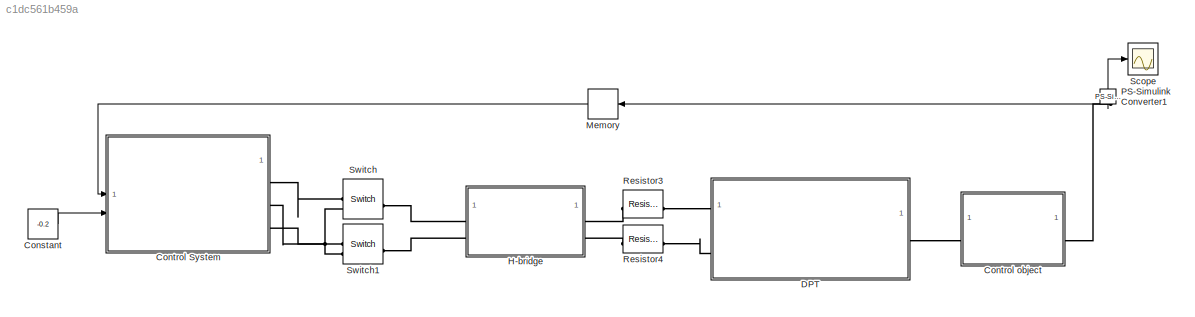
MODEL slx_c1dc561b459a
KIND model
CONFIG AbsTol = auto
CONFIG EnableMultiTasking = off
CONFIG FixedStep = auto
CONFIG MaxStep = auto
CONFIG MinStep = auto
CONFIG RelTol = 5e-3
CONFIG SampleTimeConstraint = Unconstrained
CONFIG SolverName = VariableStepAuto
CONFIG StartTime = 0.0
CONFIG StopTime = 1
BLOCK [Constant] Constant
  Value = -0.2
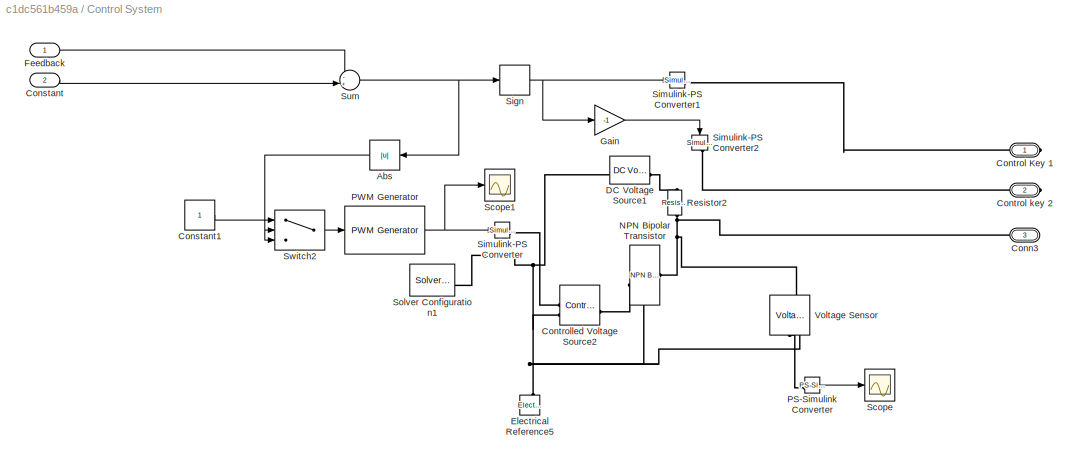
BLOCK [SubSystem] Control System
BLOCK [Abs] Control System/Abs
  NameLocation = top
  SaturateOnIntegerOverflow = off
BLOCK [PMIOPort] Control System/Conn3
  NameLocation = top
  Port = 3
  Side = Right
BLOCK [Inport] Control System/Constant
  Port = 2
BLOCK [Constant] Control System/Constant1
BLOCK [PMIOPort] Control System/Control Key 1
  Side = Right
BLOCK [PMIOPort] Control System/Control key 2
  Port = 2
  Side = Right
BLOCK [Reference] Control System/Controlled Voltage Source2  REF=fl_lib/Electrical/Electrical Sources/Controlled Voltage
Source
  SourceBlock = fl_lib/Electrical/Electrical Sources/Controlled Voltage\nSource
  SourceType = Controlled Voltage\nSource
BLOCK [Reference] Control System/DC Voltage Source1  REF=fl_lib/Electrical/Electrical Sources/DC Voltage Source
  SourceBlock = fl_lib/Electrical/Electrical Sources/DC Voltage Source
  SourceType = DC Voltage Source
BLOCK [Reference] Control System/Electrical Reference5  REF=fl_lib/Electrical/Electrical Elements/Electrical Reference
  NameLocation = right
  SourceBlock = fl_lib/Electrical/Electrical Elements/Electrical Reference
  SourceType = Electrical Reference
BLOCK [Inport] Control System/Feedback
  NameLocation = top
BLOCK [Gain] Control System/Gain
  Gain = -1
BLOCK [Reference] Control System/NPN Bipolar Transistor  REF=ee_lib/Semiconductors &
Converters/NPN Bipolar
Transistor
  SourceBlock = ee_lib/Semiconductors &\nConverters/NPN Bipolar\nTransistor
  SourceType = NPN Bipolar\nTransistor
BLOCK [Reference] Control System/PS-Simulink Converter  REF=nesl_utility/PS-Simulink
Converter
  SourceBlock = nesl_utility/PS-Simulink\nConverter
  SourceType = PS-Simulink\nConverter
BLOCK [Reference] Control System/PWM Generator  REF=eePwmGenerator/PWM Generator
  LibrarySourceBlock = ee_sl_lib/Pulse Width\nModulation/PWM Generator
  SourceBlock = eePwmGenerator/PWM Generator
  SourceType = PWM Generator
BLOCK [Reference] Control System/Resistor2  REF=fl_lib/Electrical/Electrical Elements/Resistor
  NameLocation = left
  SourceBlock = fl_lib/Electrical/Electrical Elements/Resistor
  SourceType = Resistor
BLOCK [Scope] Control System/Scope
  Floating = off
  NumInputPorts = 1
  ScopeSpecificationString = Simulink.scopes.TimeScopeBlockCfg('CurrentConfiguration', extmgr.ConfigurationSet(extmgr.Configuration('Core','General UI',true),extmgr.Configuration('Core','Source UI',true),extmgr.Configuration('Sources','WiredSimulink',true,'DataLoggingVariableName','ScopeData2'),extmgr.Configuration('Visuals','Time Domain',true,'SerializedDisplays',{struct('MinYLimReal','0.12274','MaxYLimReal','2.88243','YLabe...<+1454ch>
BLOCK [Scope] Control System/Scope1
  Floating = off
  NumInputPorts = 1
  ScopeSpecificationString = Simulink.scopes.TimeScopeBlockCfg('CurrentConfiguration', extmgr.ConfigurationSet(extmgr.Configuration('Core','General UI',true),extmgr.Configuration('Core','Source UI',true),extmgr.Configuration('Sources','WiredSimulink',true,'DataLoggingVariableName','ScopeData3'),extmgr.Configuration('Visuals','Time Domain',true,'SerializedDisplays',{struct('MinYLimReal','0.9','MaxYLimReal','1.1','YLabelReal','...<+1415ch>
BLOCK [Signum] Control System/Sign
BLOCK [Reference] Control System/Simulink-PS Converter  REF=nesl_utility/Simulink-PS
Converter
  SourceBlock = nesl_utility/Simulink-PS\nConverter
  SourceType = Simulink-PS\nConverter
BLOCK [Reference] Control System/Simulink-PS Converter1  REF=nesl_utility/Simulink-PS
Converter
  SourceBlock = nesl_utility/Simulink-PS\nConverter
  SourceType = Simulink-PS\nConverter
BLOCK [Reference] Control System/Simulink-PS Converter2  REF=nesl_utility/Simulink-PS
Converter
  NameLocation = left
  SourceBlock = nesl_utility/Simulink-PS\nConverter
  SourceType = Simulink-PS\nConverter
BLOCK [Reference] Control System/Solver Configuration1  REF=nesl_utility/Solver
Configuration
  SourceBlock = nesl_utility/Solver\nConfiguration
  SourceType = Solver\nConfiguration
BLOCK [Sum] Control System/Sum
  Inputs = -+|
BLOCK [Switch] Control System/Switch2
  Criteria = u2 > Threshold
  InputSameDT = off
  SaturateOnIntegerOverflow = off
  Threshold = 0.1
BLOCK [Reference] Control System/Voltage Sensor  REF=fl_lib/Electrical/Electrical Sensors/Voltage Sensor
  NameLocation = right
  SourceBlock = fl_lib/Electrical/Electrical Sensors/Voltage Sensor
  SourceType = Voltage Sensor
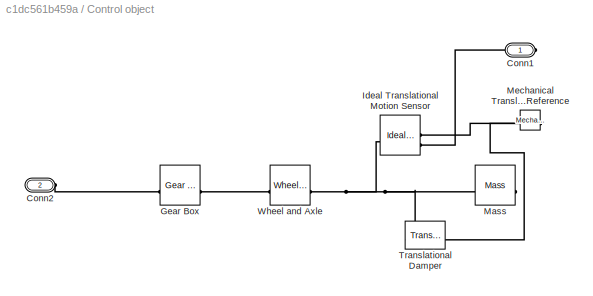
BLOCK [SubSystem] Control object
BLOCK [PMIOPort] Control object/Conn1
  Side = Right
BLOCK [PMIOPort] Control object/Conn2
  Port = 2
  Side = Left
BLOCK [Reference] Control object/Gear Box  REF=fl_lib/Mechanical/Mechanisms/Gear Box
  SourceBlock = fl_lib/Mechanical/Mechanisms/Gear Box
  SourceType = Gear Box
BLOCK [Reference] Control object/Ideal Translational Motion Sensor  REF=fl_lib/Mechanical/Mechanical Sensors/Ideal Translational
Motion Sensor
  NameLocation = right
  SourceBlock = fl_lib/Mechanical/Mechanical Sensors/Ideal Translational\nMotion Sensor
  SourceType = Ideal Translational\nMotion Sensor
BLOCK [Reference] Control object/Mass  REF=fl_lib/Mechanical/Translational
Elements/Mass
  NameLocation = top
  SourceBlock = fl_lib/Mechanical/Translational\nElements/Mass
  SourceType = Mass
BLOCK [Reference] Control object/Mechanical Translational Reference  REF=fl_lib/Mechanical/Translational
Elements/Mechanical
Translational
Reference
  NameLocation = top
  SourceBlock = fl_lib/Mechanical/Translational\nElements/Mechanical\nTranslational\nReference
  SourceType = Mechanical\nTranslational\nReference
BLOCK [Reference] Control object/Translational Damper  REF=sdl_lib/Couplings & Drives/Springs & Dampers/Translational Damper
  SourceBlock = sdl_lib/Couplings & Drives/Springs & Dampers/Translational Damper
  SourceType = Translational Damper
BLOCK [Reference] Control object/Wheel and Axle  REF=fl_lib/Mechanical/Mechanisms/Wheel and Axle
  SourceBlock = fl_lib/Mechanical/Mechanisms/Wheel and Axle
  SourceType = Wheel and Axle
BLOCK [SubSystem] DPT
  ReferencedSubsystem = DPT
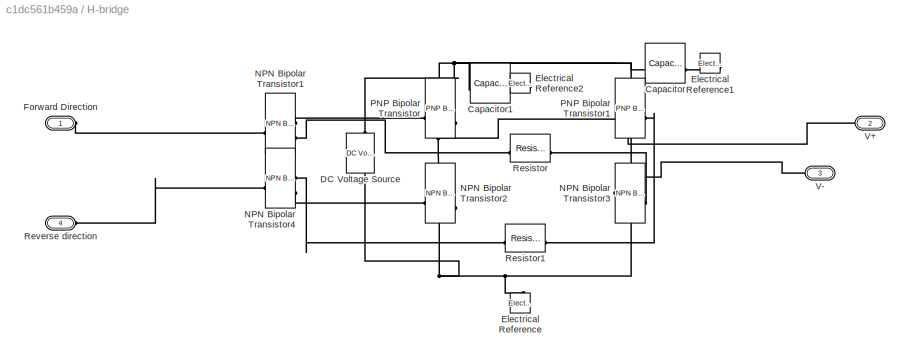
BLOCK [SubSystem] H-bridge
BLOCK [Reference] H-bridge/Capacitor  REF=fl_lib/Electrical/Electrical Elements/Capacitor
  SourceBlock = fl_lib/Electrical/Electrical Elements/Capacitor
  SourceType = Capacitor
BLOCK [Reference] H-bridge/Capacitor1  REF=fl_lib/Electrical/Electrical Elements/Capacitor
  SourceBlock = fl_lib/Electrical/Electrical Elements/Capacitor
  SourceType = Capacitor
BLOCK [Reference] H-bridge/DC Voltage Source  REF=fl_lib/Electrical/Electrical Sources/DC Voltage Source
  NameLocation = right
  SourceBlock = fl_lib/Electrical/Electrical Sources/DC Voltage Source
  SourceType = DC Voltage Source
BLOCK [Reference] H-bridge/Electrical Reference  REF=fl_lib/Electrical/Electrical Elements/Electrical Reference
  NameLocation = right
  SourceBlock = fl_lib/Electrical/Electrical Elements/Electrical Reference
  SourceType = Electrical Reference
BLOCK [Reference] H-bridge/Electrical Reference1  REF=fl_lib/Electrical/Electrical Elements/Electrical Reference
  NameLocation = top
  SourceBlock = fl_lib/Electrical/Electrical Elements/Electrical Reference
  SourceType = Electrical Reference
BLOCK [Reference] H-bridge/Electrical Reference2  REF=fl_lib/Electrical/Electrical Elements/Electrical Reference
  NameLocation = top
  SourceBlock = fl_lib/Electrical/Electrical Elements/Electrical Reference
  SourceType = Electrical Reference
BLOCK [PMIOPort] H-bridge/Forward Direction
  Side = Left
BLOCK [Reference] H-bridge/NPN Bipolar Transistor1  REF=ee_lib/Semiconductors &
Converters/NPN Bipolar
Transistor
  SourceBlock = ee_lib/Semiconductors &\nConverters/NPN Bipolar\nTransistor
  SourceType = NPN Bipolar\nTransistor
BLOCK [Reference] H-bridge/NPN Bipolar Transistor2  REF=ee_lib/Semiconductors &
Converters/NPN Bipolar
Transistor
  SourceBlock = ee_lib/Semiconductors &\nConverters/NPN Bipolar\nTransistor
  SourceType = NPN Bipolar\nTransistor
BLOCK [Reference] H-bridge/NPN Bipolar Transistor3  REF=ee_lib/Semiconductors &
Converters/NPN Bipolar
Transistor
  NameLocation = top
  SourceBlock = ee_lib/Semiconductors &\nConverters/NPN Bipolar\nTransistor
  SourceType = NPN Bipolar\nTransistor
BLOCK [Reference] H-bridge/NPN Bipolar Transistor4  REF=ee_lib/Semiconductors &
Converters/NPN Bipolar
Transistor
  SourceBlock = ee_lib/Semiconductors &\nConverters/NPN Bipolar\nTransistor
  SourceType = NPN Bipolar\nTransistor
BLOCK [Reference] H-bridge/PNP Bipolar Transistor  REF=ee_lib/Semiconductors &
Converters/PNP Bipolar
Transistor
  SourceBlock = ee_lib/Semiconductors &\nConverters/PNP Bipolar\nTransistor
  SourceType = PNP Bipolar\nTransistor
BLOCK [Reference] H-bridge/PNP Bipolar Transistor1  REF=ee_lib/Semiconductors &
Converters/PNP Bipolar
Transistor
  SourceBlock = ee_lib/Semiconductors &\nConverters/PNP Bipolar\nTransistor
  SourceType = PNP Bipolar\nTransistor
BLOCK [Reference] H-bridge/Resistor  REF=fl_lib/Electrical/Electrical Elements/Resistor
  SourceBlock = fl_lib/Electrical/Electrical Elements/Resistor
  SourceType = Resistor
BLOCK [Reference] H-bridge/Resistor1  REF=fl_lib/Electrical/Electrical Elements/Resistor
  SourceBlock = fl_lib/Electrical/Electrical Elements/Resistor
  SourceType = Resistor
BLOCK [PMIOPort] H-bridge/Reverse direction
  Port = 4
  Side = Left
BLOCK [PMIOPort] H-bridge/V+
  Port = 2
  Side = Right
BLOCK [PMIOPort] H-bridge/V-
  Port = 3
  Side = Right
BLOCK [Memory] Memory
  NameLocation = top
BLOCK [Reference] PS-Simulink Converter1  REF=nesl_utility/PS-Simulink
Converter
  NameLocation = right
  SourceBlock = nesl_utility/PS-Simulink\nConverter
  SourceType = PS-Simulink\nConverter
BLOCK [Reference] Resistor3  REF=fl_lib/Electrical/Electrical Elements/Resistor
  SourceBlock = fl_lib/Electrical/Electrical Elements/Resistor
  SourceType = Resistor
BLOCK [Reference] Resistor4  REF=fl_lib/Electrical/Electrical Elements/Resistor
  SourceBlock = fl_lib/Electrical/Electrical Elements/Resistor
  SourceType = Resistor
BLOCK [Scope] Scope
  Floating = off
  NumInputPorts = 1
  ScopeSpecificationString = Simulink.scopes.TimeScopeBlockCfg('CurrentConfiguration', extmgr.ConfigurationSet(extmgr.Configuration('Core','General UI',true),extmgr.Configuration('Core','Source UI',true),extmgr.Configuration('Sources','WiredSimulink',true,'DataLoggingVariableName','ScopeData1'),extmgr.Configuration('Visuals','Time Domain',true,'SerializedDisplays',{struct('MinYLimReal','-0.04632','MaxYLimReal','0.41692','YLab...<+1425ch>
BLOCK [Reference] Switch  REF=fl_lib/Electrical/Electrical Elements/Switch
  SourceBlock = fl_lib/Electrical/Electrical Elements/Switch
  SourceType = Switch
BLOCK [Reference] Switch1  REF=fl_lib/Electrical/Electrical Elements/Switch
  SourceBlock = fl_lib/Electrical/Electrical Elements/Switch
  SourceType = Switch
LINE Constant:1 -> Control System:2
NET Control System/Abs:1 -> Control System/Switch2:2, Control System/Switch2:3
LINE Control System/Constant1:1 -> Control System/Switch2:1
LINE Control System/Constant:1 -> Control System/Sum:2
LINE Control System/Feedback:1 -> Control System/Sum:1
LINE Control System/Gain:1 -> Control System/Simulink-PS Converter2:1
LINE Control System/PS-Simulink Converter:1 -> Control System/Scope:1
NET Control System/PWM Generator:1 -> Control System/Scope1:1, Control System/Simulink-PS Converter:1
NET Control System/Sign:1 -> Control System/Gain:1, Control System/Simulink-PS Converter1:1
NET Control System/Sum:1 -> Control System/Abs:1, Control System/Sign:1
LINE Control System/Switch2:1 -> Control System/PWM Generator:1
LINE Memory:1 -> Control System:1
NET PS-Simulink Converter1:1 -> Memory:1, Scope:1
PNET net1: Control System/Conn3:RConn1 -- Control System/NPN Bipolar Transistor:RConn1 -- Control System/Resistor2:RConn1 -- Control System/Voltage Sensor:LConn1
PLINE Control System/Control Key 1:RConn1 -- Control System/Simulink-PS Converter1:RConn1
PLINE Control System/Control key 2:RConn1 -- Control System/Simulink-PS Converter2:RConn1
PLINE Control System/Controlled Voltage Source2:LConn1 -- Control System/NPN Bipolar Transistor:LConn1
PLINE Control System/Controlled Voltage Source2:RConn1 -- Control System/Simulink-PS Converter:RConn1
PNET net2: Control System/Controlled Voltage Source2:RConn2 -- Control System/DC Voltage Source1:RConn1 -- Control System/Electrical Reference5:LConn1 -- Control System/NPN Bipolar Transistor:RConn2 -- Control System/Solver Configuration1:RConn1 -- Control System/Voltage Sensor:RConn2
PLINE Control System/DC Voltage Source1:LConn1 -- Control System/Resistor2:LConn1
PLINE Control System/PS-Simulink Converter:LConn1 -- Control System/Voltage Sensor:RConn1
PLINE Control System:RConn1 -- Switch:RConn1
PLINE Control System:RConn2 -- Switch1:RConn1
PNET net3: Control System:RConn3 -- Switch1:RConn2 -- Switch:RConn2
PLINE Control object/Conn1:RConn1 -- Control object/Ideal Translational Motion Sensor:RConn2
PLINE Control object/Conn2:RConn1 -- Control object/Gear Box:LConn1
PLINE Control object/Gear Box:RConn1 -- Control object/Wheel and Axle:LConn1
PNET net4: Control object/Ideal Translational Motion Sensor:LConn1 -- Control object/Mass:LConn1 -- Control object/Translational Damper:LConn1 -- Control object/Wheel and Axle:RConn1
PNET net5: Control object/Ideal Translational Motion Sensor:RConn1 -- Control object/Mechanical Translational Reference:LConn1 -- Control object/Translational Damper:RConn1
PLINE Control object:LConn1 -- DPT:RConn1
PLINE Control object:RConn1 -- PS-Simulink Converter1:LConn1
PLINE DPT:LConn1 -- Resistor3:RConn1
PLINE DPT:LConn2 -- Resistor4:RConn1
PNET net6: H-bridge/Capacitor1:LConn1 -- H-bridge/Capacitor:LConn1 -- H-bridge/DC Voltage Source:LConn1 -- H-bridge/PNP Bipolar Transistor1:RConn1 -- H-bridge/PNP Bipolar Transistor:RConn1
PLINE H-bridge/Capacitor1:RConn1 -- H-bridge/Electrical Reference2:LConn1
PLINE H-bridge/Capacitor:RConn1 -- H-bridge/Electrical Reference1:LConn1
PNET net7: H-bridge/DC Voltage Source:RConn1 -- H-bridge/Electrical Reference:LConn1 -- H-bridge/NPN Bipolar Transistor2:RConn2 -- H-bridge/NPN Bipolar Transistor3:RConn2
PLINE H-bridge/Forward Direction:RConn1 -- H-bridge/NPN Bipolar Transistor1:LConn1
PLINE H-bridge/NPN Bipolar Transistor1:RConn1 -- H-bridge/PNP Bipolar Transistor:LConn1
PLINE H-bridge/NPN Bipolar Transistor1:RConn2 -- H-bridge/Resistor:LConn1
PLINE H-bridge/NPN Bipolar Transistor2:LConn1 -- H-bridge/NPN Bipolar Transistor4:RConn2
PNET net8: H-bridge/NPN Bipolar Transistor2:RConn1 -- H-bridge/PNP Bipolar Transistor:RConn2 -- H-bridge/V+:RConn1
PLINE H-bridge/NPN Bipolar Transistor3:LConn1 -- H-bridge/Resistor:RConn1
PNET net9: H-bridge/NPN Bipolar Transistor3:RConn1 -- H-bridge/PNP Bipolar Transistor1:RConn2 -- H-bridge/V-:RConn1
PLINE H-bridge/NPN Bipolar Transistor4:LConn1 -- H-bridge/Reverse direction:RConn1
PLINE H-bridge/NPN Bipolar Transistor4:RConn1 -- H-bridge/Resistor1:LConn1
PLINE H-bridge/PNP Bipolar Transistor1:LConn1 -- H-bridge/Resistor1:RConn1
PLINE H-bridge:LConn1 -- Switch:LConn1
PLINE H-bridge:LConn2 -- Switch1:LConn1
PLINE H-bridge:RConn1 -- Resistor3:LConn1
PLINE H-bridge:RConn2 -- Resistor4:LConn1
note: NET lines group one-source signal fan-out (src -> all destinations, sorted); 1:1 wires keep LINE; PNET lines group multi-terminal physical nets as a canonical sorted terminal list (undirected conserving connections); 2-terminal nets keep the pairwise PLINE form
